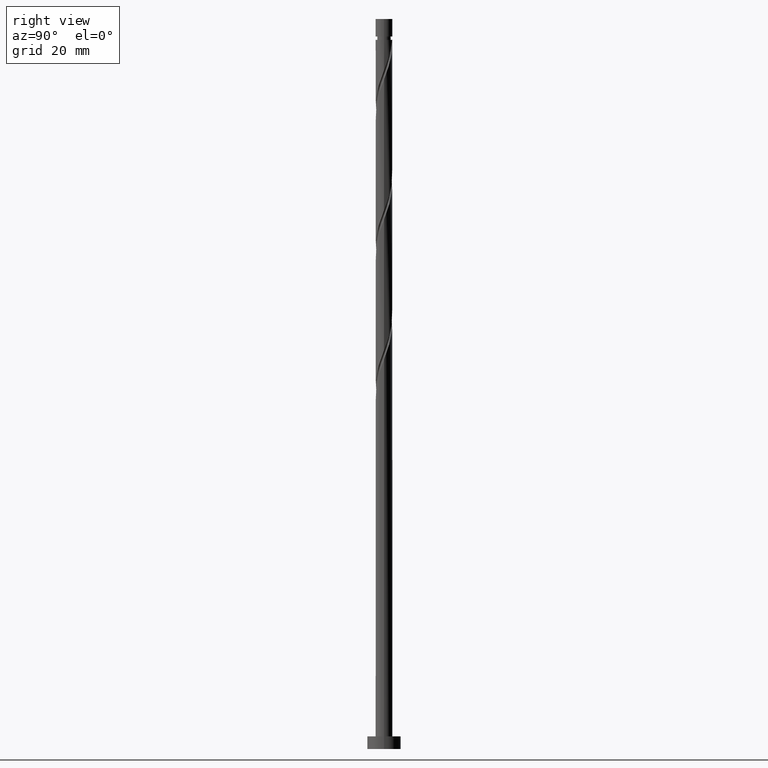
[diagram: clean part render]
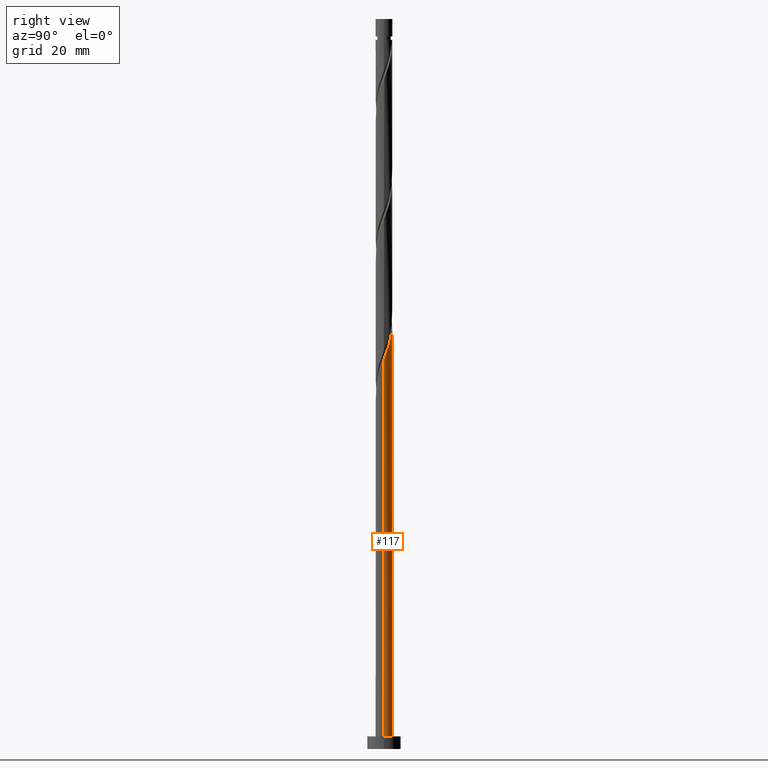
[diagram: same view with one face highlighted and labeled with its STEP entity id]
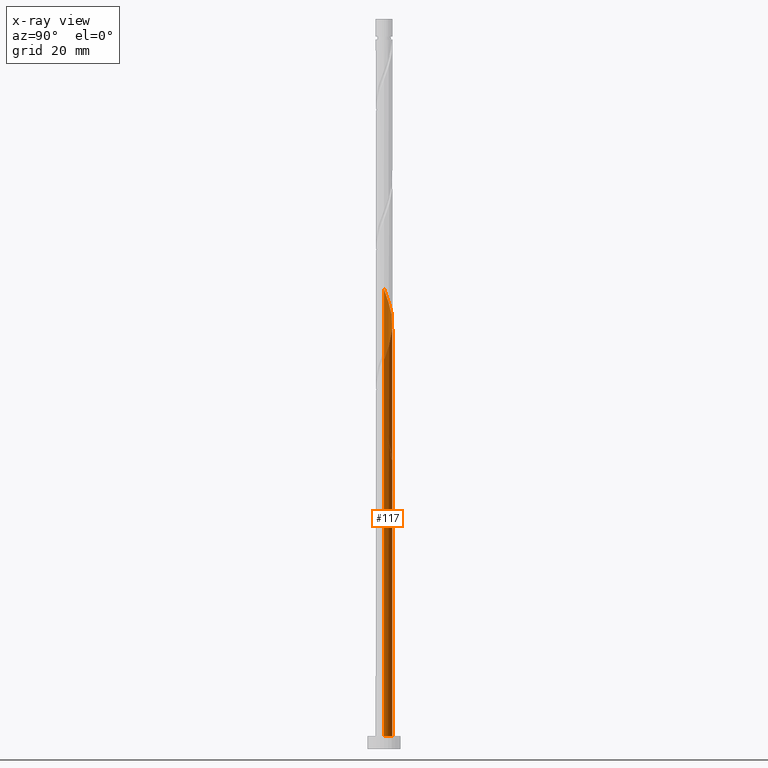
[diagram: x-ray of the same camera — body ghosted, the highlighted face saturated]
A machine part, right view. The second image highlights one B-rep face of the part: STEP entity #117.
The next image is the same camera in x-ray: the body ghosted, the highlighted face saturated — about 0% of this face is hidden behind the body in this view.
In plain terms, the highlighted cylindrical surface (edge-blend (fillet) strip) has radius 2 mm, axis along (-0, -0, -1).
Its self-contained STEP definition (entity closure, byte-faithful):
#22 = CARTESIAN_POINT ( 'NONE',  ( -2.000000000000000000, 0.000000000000000000, 173.8199999999999932 ) ) ;
#49 = LINE ( 'NONE', #602, #864 ) ;
#55 = CARTESIAN_POINT ( 'NONE',  ( -0.6560338701139453166, 1.907602967534734573, 69.54596063014136575 ) ) ;
#80 = DIRECTION ( 'NONE',  ( -0.000000000000000000, -0.000000000000000000, -1.000000000000000000 ) ) ;
#84 = CARTESIAN_POINT ( 'NONE',  ( -0.3979949748426486189, 1.960000000000002629, 68.85151618569693710 ) ) ;
#90 = ORIENTED_EDGE ( 'NONE', *, *, #306, .T. ) ;
#100 = CARTESIAN_POINT ( 'NONE',  ( 1.907602967534735461, 0.6560338701139452056, 94.54596063014137997 ) ) ;
#102 = ORIENTED_EDGE ( 'NONE', *, *, #1126, .F. ) ;
#108 = CARTESIAN_POINT ( 'NONE',  ( 2.000000000000002665, 4.336597488649785241E-16, 92.78794953048682714 ) ) ;
#117 = ADVANCED_FACE ( 'NONE', ( #422 ), #1655, .T. ) ;
#118 = CARTESIAN_POINT ( 'NONE',  ( -2.000000000000002665, 0.06148390331534603348, 109.2914525091253495 ) ) ;
#125 = CARTESIAN_POINT ( 'NONE',  ( 2.000000000000002665, 4.336597488649785241E-16, 92.78794953048682714 ) ) ;
#127 = CARTESIAN_POINT ( 'NONE',  ( -2.000000000000000444, 0.2010075630518415868, 77.71498980505106147 ) ) ;
#134 = CARTESIAN_POINT ( 'NONE',  ( 0.1228517034671602198, 1.996223298870952956, 100.7959606301413658 ) ) ;
#141 = CARTESIAN_POINT ( 'NONE',  ( 0.1399560795713529759, 2.012397032465266911, 69.54596063014136575 ) ) ;
#144 = VERTEX_POINT ( 'NONE', #290 ) ;
#158 = CARTESIAN_POINT ( 'NONE',  ( 0.3979949748426491740, 1.959999999999999520, 68.85151618569693710 ) ) ;
#164 = DIRECTION ( 'NONE',  ( 0.000000000000000000, 0.000000000000000000, 1.000000000000000000 ) ) ;
#176 = CARTESIAN_POINT ( 'NONE',  ( -0.3856594865056692245, 1.980049565276631895, 70.93484951903025149 ) ) ;
#187 = CARTESIAN_POINT ( 'NONE',  ( -2.000000000000000000, 0.000000000000000000, 173.8199999999999932 ) ) ;
#210 = ORIENTED_EDGE ( 'NONE', *, *, #1374, .T. ) ;
#211 = ORIENTED_EDGE ( 'NONE', *, *, #954, .T. ) ;
#222 = CARTESIAN_POINT ( 'NONE',  ( -1.896407278838827315, 0.6353262412077188559, 74.40707174125250845 ) ) ;
#232 = CARTESIAN_POINT ( 'NONE',  ( 0.6353262412077195220, 1.896407278838826649, 99.40707174125248002 ) ) ;
#243 = CARTESIAN_POINT ( 'NONE',  ( 1.498412303996178752, 1.324673758792282774, 96.62929396347470856 ) ) ;
#244 = ORIENTED_EDGE ( 'NONE', *, *, #1365, .F. ) ;
#253 = CARTESIAN_POINT ( 'NONE',  ( -1.498412303996174977, 1.324673758792282552, 74.40707174125249423 ) ) ;
#256 = VERTEX_POINT ( 'NONE', #611 ) ;
#262 = CARTESIAN_POINT ( 'NONE',  ( 1.960000000000002629, 0.3979949748426486744, 93.85151618569693710 ) ) ;
#271 = CARTESIAN_POINT ( 'NONE',  ( -1.104504345536226673, 1.667354236715039573, 73.01818285236360850 ) ) ;
#290 = CARTESIAN_POINT ( 'NONE',  ( 0.3979949748426492295, 1.959999999999999520, 68.85151618569693710 ) ) ;
#306 = EDGE_CURVE ( 'NONE', #1166, #1456, #489, .T. ) ;
#356 = CARTESIAN_POINT ( 'NONE',  ( -2.000000000000003553, 0.06148390331533680475, 75.95811917579207773 ) ) ;
#363 = VERTEX_POINT ( 'NONE', #978 ) ;
#376 = CARTESIAN_POINT ( 'NONE',  ( -1.790205940182197253, 0.8917189533347235075, 75.79596063014139418 ) ) ;
#388 = CARTESIAN_POINT ( 'NONE',  ( -1.324673758792283662, 1.498412303996177641, 104.9626272968080372 ) ) ;
#409 =( BOUNDED_CURVE ( )  B_SPLINE_CURVE ( 2, ( #108, #1355, #262, #100, #673, #1328, #243, #924, #1445, #1453, #232, #780, #134, #946, #1077, #1724, #650, #1047, #388, #683, #661, #1207, #1226, #809, #542, #118, #1593 ),
 .UNSPECIFIED., .F., .T. ) 
 B_SPLINE_CURVE_WITH_KNOTS ( ( 3, 2, 2, 2, 2, 2, 2, 2, 2, 2, 2, 2, 2, 3 ),
 ( 0.1795317669814459616, 0.1875000000000000000, 0.1979166666666666297, 0.2083333333333333703, 0.2187500000000000000, 0.2291666666666666297, 0.2395833333333333703, 0.2500000000000000000, 0.2604166666666666297, 0.2708333333333333703, 0.2812500000000000000, 0.2916666666666666297, 0.3020833333333333703, 0.3045317669814463502 ),
 .UNSPECIFIED. ) 
 CURVE ( )  GEOMETRIC_REPRESENTATION_ITEM ( )  RATIONAL_B_SPLINE_CURVE ( ( 0.9062941362546530488, 0.9031415850403569090, 0.9090909090909324863, 0.9013135103398509651, 0.9090909090909324863, 0.9013135103398509651, 0.9090909090909324863, 0.9013135103398509651, 0.9090909090909324863, 0.9013135103398509651, 0.9090909090909324863, 0.9013135103398509651, 0.9090909090909324863, 0.9013135103398509651, 0.9090909090909324863, 0.9013135103398509651, 0.9090909090909324863, 0.9013135103398509651, 0.9090909090909324863, 0.9013135103398509651, 0.9090909090909324863, 0.9013135103398509651, 0.9090909090909324863, 0.9013135103398509651, 0.9090909090909324863, 0.9072628343904262094, 0.9062941362546528268 ) ) 
 REPRESENTATION_ITEM ( '' )  );
#410 = ORIENTED_EDGE ( 'NONE', *, *, #1309, .F. ) ;
#422 = FACE_OUTER_BOUND ( 'NONE', #1425, .T. ) ;
#446 = DIRECTION ( 'NONE',  ( -0.000000000000000000, -0.000000000000000000, -1.000000000000000000 ) ) ;
#481 = CARTESIAN_POINT ( 'NONE',  ( -0.3979949748426486189, 1.960000000000002629, 68.85151618569693710 ) ) ;
#489 = CIRCLE ( 'NONE', #1083, 2.000000000000000000 ) ;
#518 = AXIS2_PLACEMENT_3D ( 'NONE', #570, #1522, #1645 ) ;
#542 = CARTESIAN_POINT ( 'NONE',  ( -1.996223298870952956, 0.1228517034671589986, 109.1292939634747086 ) ) ;
#570 = CARTESIAN_POINT ( 'NONE',  ( 0.000000000000000000, 0.000000000000000000, 173.8199999999999932 ) ) ;
#594 = VECTOR ( 'NONE', #446, 1000.000000000000000 ) ;
#602 = CARTESIAN_POINT ( 'NONE',  ( 2.000000000000000000, 2.449293598294706414E-16, 173.8199999999999932 ) ) ;
#609 = CARTESIAN_POINT ( 'NONE',  ( -0.8917189533347240626, 1.790205940182200806, 70.24040507458580862 ) ) ;
#611 = CARTESIAN_POINT ( 'NONE',  ( -2.000000000000002665, -1.674823857685434144E-15, 76.12128286382021258 ) ) ;
#633 = CARTESIAN_POINT ( 'NONE',  ( -1.996223298870952956, 0.1228517034671589986, 75.79596063014139418 ) ) ;
#650 = CARTESIAN_POINT ( 'NONE',  ( -0.8917189533347240626, 1.790205940182200806, 103.5737384079191798 ) ) ;
#661 = CARTESIAN_POINT ( 'NONE',  ( -1.667354236715041349, 1.104504345536228449, 106.3515161856969655 ) ) ;
#673 = CARTESIAN_POINT ( 'NONE',  ( 1.790205940182201028, 0.8917189533347233965, 95.24040507458582283 ) ) ;
#683 = CARTESIAN_POINT ( 'NONE',  ( -1.521943481029064626, 1.324015695162689799, 105.6570717412524942 ) ) ;
#696 = DIRECTION ( 'NONE',  ( 1.000000000000000000, 0.000000000000000000, 0.000000000000000000 ) ) ;
#703 = CARTESIAN_POINT ( 'NONE',  ( 0.000000000000000000, 0.000000000000000000, 3.000000000000000000 ) ) ;
#740 = CARTESIAN_POINT ( 'NONE',  ( -2.000000000000002665, -1.674823857685434144E-15, 109.4546161971535412 ) ) ;
#762 = CARTESIAN_POINT ( 'NONE',  ( -1.667354236715041349, 1.104504345536228449, 73.01818285236359429 ) ) ;
#770 = CARTESIAN_POINT ( 'NONE',  ( -2.000000000000002665, -1.674823857685434144E-15, 76.12128286382021258 ) ) ;
#780 = CARTESIAN_POINT ( 'NONE',  ( 0.3856594865056713894, 1.980049565276635670, 100.1015161856969087 ) ) ;
#790 = DIRECTION ( 'NONE',  ( -1.000000000000000000, 0.000000000000000000, 0.000000000000000000 ) ) ;
#809 = CARTESIAN_POINT ( 'NONE',  ( -1.980049565276635670, 0.3856594865056701682, 108.4348495190302373 ) ) ;
#834 = CARTESIAN_POINT ( 'NONE',  ( -0.8849929959097652121, 1.812764992401015407, 72.32373840791915143 ) ) ;
#837 = CIRCLE ( 'NONE', #1538, 2.000000000000000000 ) ;
#864 = VECTOR ( 'NONE', #1142, 1000.000000000000000 ) ;
#924 = CARTESIAN_POINT ( 'NONE',  ( 1.324015695162691575, 1.521943481029063294, 97.32373840791915143 ) ) ;
#935 = VERTEX_POINT ( 'NONE', #84 ) ;
#946 = CARTESIAN_POINT ( 'NONE',  ( -0.1399560795713508665, 2.012397032465270019, 101.4904050745858228 ) ) ;
#954 = EDGE_CURVE ( 'NONE', #935, #144, #837, .T. ) ;
#975 = EDGE_CURVE ( 'NONE', #1644, #1446, #409, .T. ) ;
#978 = CARTESIAN_POINT ( 'NONE',  ( -2.000000000000000000, -2.975803104280389043E-15, 78.24841617424034723 ) ) ;
#993 = CARTESIAN_POINT ( 'NONE',  ( -0.6353262412077173016, 1.896407278838824428, 71.62929396347472277 ) ) ;
#1047 = CARTESIAN_POINT ( 'NONE',  ( -1.127404036555502476, 1.672808912829665262, 104.2681828523635659 ) ) ;
#1067 = CARTESIAN_POINT ( 'NONE',  ( 0.000000000000000000, 0.000000000000000000, 68.85151618569693710 ) ) ;
#1077 = CARTESIAN_POINT ( 'NONE',  ( -0.3979949748426486189, 1.960000000000002629, 102.1848495190302657 ) ) ;
#1083 = AXIS2_PLACEMENT_3D ( 'NONE', #703, #164, #696 ) ;
#1086 = CARTESIAN_POINT ( 'NONE',  ( -1.324015695162687356, 1.521943481029062406, 73.71262729680802295 ) ) ;
#1094 = CARTESIAN_POINT ( 'NONE',  ( -0.1228517034671581382, 1.996223298870949847, 70.24040507458582283 ) ) ;
#1119 = CARTESIAN_POINT ( 'NONE',  ( 2.000000000000000000, 2.449293598294706414E-16, 3.000000000000000000 ) ) ;
#1121 = ORIENTED_EDGE ( 'NONE', *, *, #975, .F. ) ;
#1126 = EDGE_CURVE ( 'NONE', #363, #144, #1143, .T. ) ;
#1142 = DIRECTION ( 'NONE',  ( -0.000000000000000000, -0.000000000000000000, -1.000000000000000000 ) ) ;
#1143 =( BOUNDED_CURVE ( )  B_SPLINE_CURVE ( 2, ( #1347, #127, #1743, #1464, #376, #1483, #253, #1086, #271, #834, #993, #176, #1094, #141, #158 ),
 .UNSPECIFIED., .F., .T. ) 
 B_SPLINE_CURVE_WITH_KNOTS ( ( 3, 2, 2, 2, 2, 2, 2, 3 ),
 ( 0.9295317669814462391, 0.9375000000000000000, 0.9479166666666666297, 0.9583333333333333703, 0.9687500000000000000, 0.9791666666666666297, 0.9895833333333333703, 1.000000000000000000 ),
 .UNSPECIFIED. ) 
 CURVE ( )  GEOMETRIC_REPRESENTATION_ITEM ( )  RATIONAL_B_SPLINE_CURVE ( ( 0.9062941362546469426, 0.9031415850403510248, 0.9090909090909264911, 0.9013135103398449699, 0.9090909090909264911, 0.9013135103398449699, 0.9090909090909264911, 0.9013135103398449699, 0.9090909090909264911, 0.9013135103398449699, 0.9090909090909264911, 0.9013135103398449699, 0.9090909090909264911, 0.9013135103398449699, 0.9090909090909264911 ) ) 
 REPRESENTATION_ITEM ( '' )  );
#1166 = VERTEX_POINT ( 'NONE', #1119 ) ;
#1168 = CARTESIAN_POINT ( 'NONE',  ( -1.127404036555502476, 1.672808912829665262, 70.93484951903026570 ) ) ;
#1207 = CARTESIAN_POINT ( 'NONE',  ( -1.812764992401018072, 0.8849929959097668775, 107.0459606301413800 ) ) ;
#1226 = CARTESIAN_POINT ( 'NONE',  ( -1.896407278838827315, 0.6353262412077188559, 107.7404050745858228 ) ) ;
#1250 = LINE ( 'NONE', #22, #594 ) ;
#1283 = CARTESIAN_POINT ( 'NONE',  ( -2.000000000000000000, 0.000000000000000000, 3.000000000000000000 ) ) ;
#1298 = LINE ( 'NONE', #187, #1622 ) ;
#1306 = CARTESIAN_POINT ( 'NONE',  ( -1.980049565276635670, 0.3856594865056701682, 75.10151618569690868 ) ) ;
#1309 = EDGE_CURVE ( 'NONE', #1446, #363, #1250, .T. ) ;
#1328 = CARTESIAN_POINT ( 'NONE',  ( 1.672808912829666150, 1.127404036555501810, 95.93484951903026570 ) ) ;
#1347 = CARTESIAN_POINT ( 'NONE',  ( -2.000000000000000000, -2.975803104280389043E-15, 78.24841617424034723 ) ) ;
#1355 = CARTESIAN_POINT ( 'NONE',  ( 2.000000000000004441, 0.2010075630518327883, 93.32137589967605606 ) ) ;
#1357 = EDGE_CURVE ( 'NONE', #256, #1456, #1298, .T. ) ;
#1365 = EDGE_CURVE ( 'NONE', #935, #256, #1674, .T. ) ;
#1374 = EDGE_CURVE ( 'NONE', #1644, #1166, #49, .T. ) ;
#1424 = ORIENTED_EDGE ( 'NONE', *, *, #1357, .F. ) ;
#1425 = EDGE_LOOP ( 'NONE', ( #1121, #210, #90, #1424, #244, #211, #102, #410 ) ) ;
#1445 = CARTESIAN_POINT ( 'NONE',  ( 1.104504345536228671, 1.667354236715041349, 98.01818285236360850 ) ) ;
#1446 = VERTEX_POINT ( 'NONE', #740 ) ;
#1453 = CARTESIAN_POINT ( 'NONE',  ( 0.8849929959097678767, 1.812764992401017849, 98.71262729680803716 ) ) ;
#1456 = VERTEX_POINT ( 'NONE', #1283 ) ;
#1464 = CARTESIAN_POINT ( 'NONE',  ( -1.907602967534731686, 0.6560338701139447615, 76.49040507458580862 ) ) ;
#1483 = CARTESIAN_POINT ( 'NONE',  ( -1.672808912829662820, 1.127404036555501587, 75.10151618569693710 ) ) ;
#1522 = DIRECTION ( 'NONE',  ( -0.000000000000000000, -0.000000000000000000, -1.000000000000000000 ) ) ;
#1534 = CARTESIAN_POINT ( 'NONE',  ( -1.812764992401018072, 0.8849929959097668775, 73.71262729680805137 ) ) ;
#1538 = AXIS2_PLACEMENT_3D ( 'NONE', #1067, #1614, #790 ) ;
#1566 = CARTESIAN_POINT ( 'NONE',  ( -1.521943481029064626, 1.324015695162689799, 72.32373840791913722 ) ) ;
#1593 = CARTESIAN_POINT ( 'NONE',  ( -2.000000000000002665, -1.674823857685434144E-15, 109.4546161971535412 ) ) ;
#1614 = DIRECTION ( 'NONE',  ( 0.000000000000000000, -0.000000000000000000, -1.000000000000000000 ) ) ;
#1622 = VECTOR ( 'NONE', #80, 1000.000000000000000 ) ;
#1644 = VERTEX_POINT ( 'NONE', #125 ) ;
#1645 = DIRECTION ( 'NONE',  ( -1.000000000000000000, 0.000000000000000000, 0.000000000000000000 ) ) ;
#1655 = CYLINDRICAL_SURFACE ( 'NONE', #518, 2.000000000000000000 ) ;
#1674 =( BOUNDED_CURVE ( )  B_SPLINE_CURVE ( 2, ( #481, #55, #609, #1168, #1692, #1566, #762, #1534, #222, #1306, #633, #356, #770 ),
 .UNSPECIFIED., .F., .T. ) 
 B_SPLINE_CURVE_WITH_KNOTS ( ( 3, 2, 2, 2, 2, 2, 3 ),
 ( 0.000000000000000000, 0.01041666666666662966, 0.02083333333333337034, 0.03125000000000000000, 0.04166666666666662966, 0.05208333333333337034, 0.05453176698144671791 ),
 .UNSPECIFIED. ) 
 CURVE ( )  GEOMETRIC_REPRESENTATION_ITEM ( )  RATIONAL_B_SPLINE_CURVE ( ( 0.9090909090909324863, 0.9013135103398509651, 0.9090909090909324863, 0.9013135103398509651, 0.9090909090909324863, 0.9013135103398509651, 0.9090909090909324863, 0.9013135103398509651, 0.9090909090909324863, 0.9013135103398509651, 0.9090909090909324863, 0.9072628343904258763, 0.9062941362546523827 ) ) 
 REPRESENTATION_ITEM ( '' )  );
#1692 = CARTESIAN_POINT ( 'NONE',  ( -1.324673758792283662, 1.498412303996177641, 71.62929396347470856 ) ) ;
#1724 = CARTESIAN_POINT ( 'NONE',  ( -0.6560338701139453166, 1.907602967534734573, 102.8792939634747086 ) ) ;
#1743 = CARTESIAN_POINT ( 'NONE',  ( -1.959999999999999520, 0.3979949748426487854, 77.18484951903027991 ) ) ;